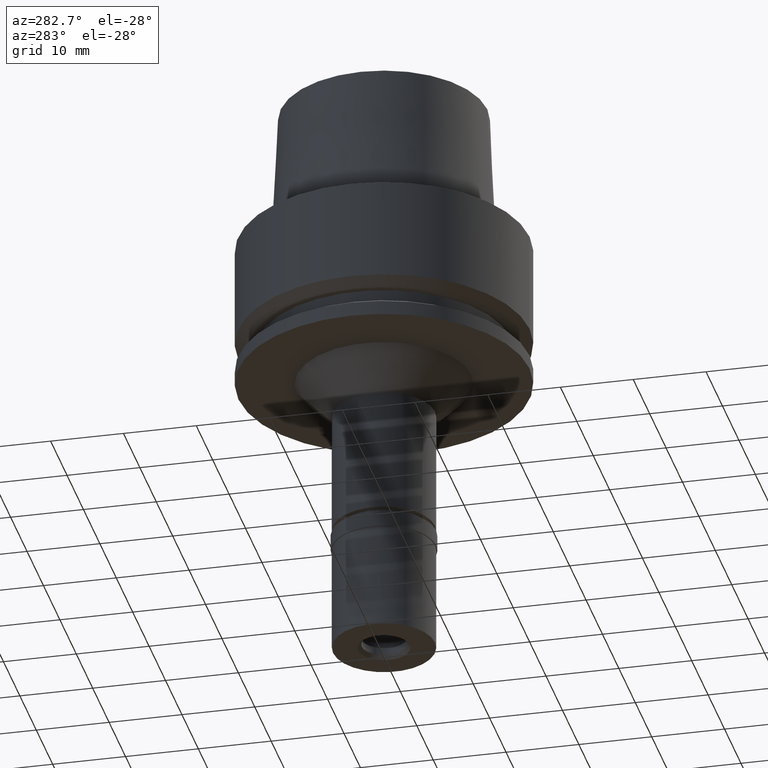
[diagram: clean part render]
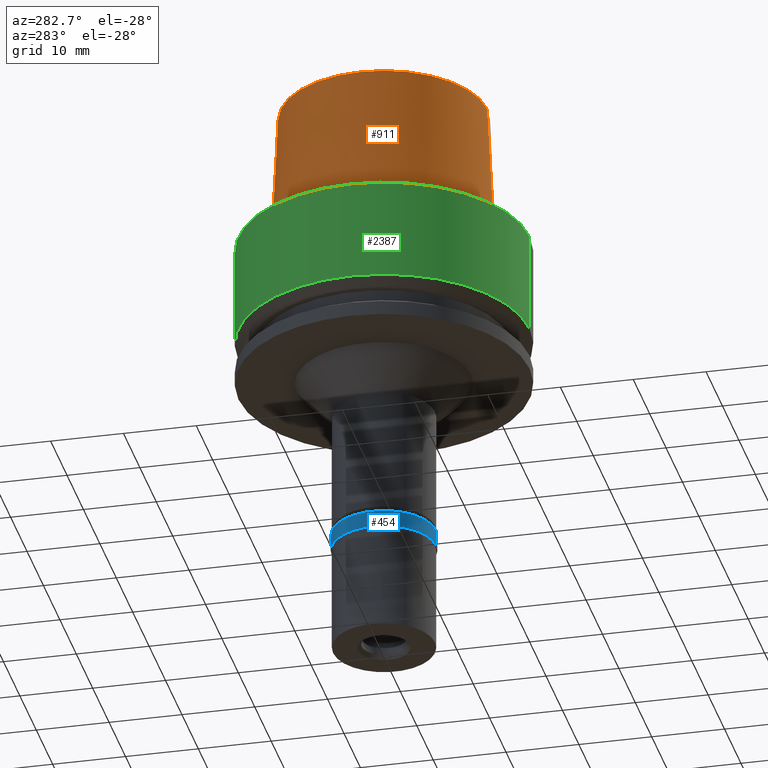
[diagram: same view with three faces highlighted in distinct colors, each labeled with its STEP entity id]
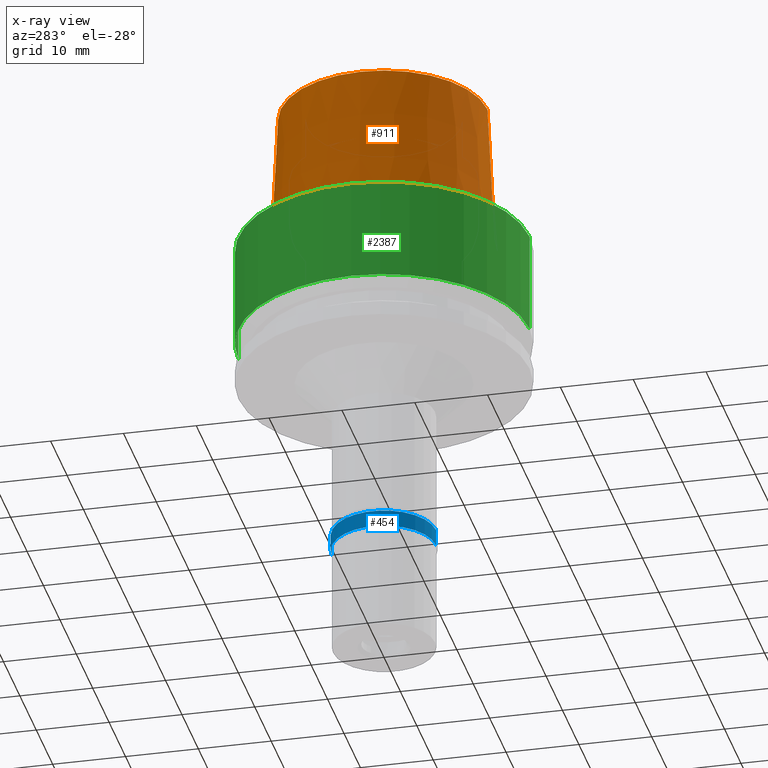
[diagram: x-ray of the same camera — body ghosted, the three highlighted faces saturated]
A machine part, auxiliary view with three faces highlighted in distinct colors.
The next image is the same camera in x-ray (body ghosted, the three faces saturated) — at least one of them is partly hidden behind the body in this view.
Their STEP definitions:

[orange] entity #911 — the highlighted conical surface has half-angle 2.862 deg.
#64 = EDGE_CURVE ( 'NONE', #2385, #2544, #947, .T. ) ;
#105 = DIRECTION ( 'NONE',  ( 0.0000000000000000000, 0.04993752584496928548, -0.9987523434327867378 ) ) ;
#107 = ORIENTED_EDGE ( 'NONE', *, *, #1122, .T. ) ;
#134 = CARTESIAN_POINT ( 'NONE',  ( 0.0000000000000000000, 15.19999963424000100, 3.801403636316999971E-13 ) ) ;
#331 = ORIENTED_EDGE ( 'NONE', *, *, #64, .T. ) ;
#467 = CARTESIAN_POINT ( 'NONE',  ( 0.0000000000000000000, 14.20000146305999955, 20.00000000000000000 ) ) ;
#520 = EDGE_CURVE ( 'NONE', #1661, #1848, #1071, .T. ) ;
#579 = DIRECTION ( 'NONE',  ( 0.0000000000000000000, 1.000000000000000000, 0.0000000000000000000 ) ) ;
#604 = CARTESIAN_POINT ( 'NONE',  ( 0.0000000000000000000, -14.20000146305999955, 20.00000000000000000 ) ) ;
#680 = AXIS2_PLACEMENT_3D ( 'NONE', #2234, #1987, #579 ) ;
#725 = CARTESIAN_POINT ( 'NONE',  ( 0.0000000000000000000, 0.0000000000000000000, 20.00000000000000000 ) ) ;
#882 = AXIS2_PLACEMENT_3D ( 'NONE', #1846, #1063, #1435 ) ;
#911 = ADVANCED_FACE ( 'NONE', ( #1033 ), #1011, .T. ) ;
#931 = DIRECTION ( 'NONE',  ( 0.0000000000000000000, -1.000000000000000000, 0.0000000000000000000 ) ) ;
#947 = LINE ( 'NONE', #962, #2013 ) ;
#962 = CARTESIAN_POINT ( 'NONE',  ( 0.0000000000000000000, 14.20000146305999955, 20.00000000000000000 ) ) ;
#1011 = CONICAL_SURFACE ( 'NONE', #882, 14.70000054865000116, 0.04995830450907576964 ) ;
#1033 = FACE_OUTER_BOUND ( 'NONE', #2287, .T. ) ;
#1063 = DIRECTION ( 'NONE',  ( 0.0000000000000000000, 0.0000000000000000000, -1.000000000000000000 ) ) ;
#1071 = LINE ( 'NONE', #604, #1095 ) ;
#1095 = VECTOR ( 'NONE', #2269, 999.9999999999998863 ) ;
#1122 = EDGE_CURVE ( 'NONE', #1661, #2385, #1583, .T. ) ;
#1184 = CARTESIAN_POINT ( 'NONE',  ( 0.0000000000000000000, -15.19999963424000100, 3.801403636316999971E-13 ) ) ;
#1297 = ORIENTED_EDGE ( 'NONE', *, *, #520, .F. ) ;
#1329 = CARTESIAN_POINT ( 'NONE',  ( 0.0000000000000000000, -14.20000146305999955, 20.00000000000000000 ) ) ;
#1435 = DIRECTION ( 'NONE',  ( 0.0000000000000000000, -1.000000000000000000, 0.0000000000000000000 ) ) ;
#1583 = CIRCLE ( 'NONE', #2366, 14.20000146305999955 ) ;
#1661 = VERTEX_POINT ( 'NONE', #1329 ) ;
#1846 = CARTESIAN_POINT ( 'NONE',  ( 0.0000000000000000000, 0.0000000000000000000, 10.00000000000000000 ) ) ;
#1848 = VERTEX_POINT ( 'NONE', #1184 ) ;
#1987 = DIRECTION ( 'NONE',  ( 0.0000000000000000000, 0.0000000000000000000, 1.000000000000000000 ) ) ;
#2013 = VECTOR ( 'NONE', #105, 999.9999999999998863 ) ;
#2143 = ORIENTED_EDGE ( 'NONE', *, *, #2598, .T. ) ;
#2171 = DIRECTION ( 'NONE',  ( 0.0000000000000000000, 0.0000000000000000000, -1.000000000000000000 ) ) ;
#2234 = CARTESIAN_POINT ( 'NONE',  ( 0.0000000000000000000, 0.0000000000000000000, 6.821210263297000155E-13 ) ) ;
#2269 = DIRECTION ( 'NONE',  ( 0.0000000000000000000, -0.04993752584496928548, -0.9987523434327867378 ) ) ;
#2287 = EDGE_LOOP ( 'NONE', ( #2143, #1297, #107, #331 ) ) ;
#2366 = AXIS2_PLACEMENT_3D ( 'NONE', #725, #2171, #931 ) ;
#2385 = VERTEX_POINT ( 'NONE', #467 ) ;
#2544 = VERTEX_POINT ( 'NONE', #134 ) ;
#2563 = CIRCLE ( 'NONE', #680, 15.19999963424000100 ) ;
#2598 = EDGE_CURVE ( 'NONE', #2544, #1848, #2563, .T. ) ;

[blue] entity #454 — the highlighted cylindrical surface (partial cylindrical patch) has radius 7.15 mm, axis along (0, 0, 1).
#102 = VECTOR ( 'NONE', #1760, 1000.000000000000000 ) ;
#144 = DIRECTION ( 'NONE',  ( 0.0000000000000000000, -1.000000000000000000, 0.0000000000000000000 ) ) ;
#361 = AXIS2_PLACEMENT_3D ( 'NONE', #1369, #1597, #144 ) ;
#454 = ADVANCED_FACE ( 'NONE', ( #1707 ), #1097, .T. ) ;
#486 = AXIS2_PLACEMENT_3D ( 'NONE', #1850, #1660, #2495 ) ;
#609 = EDGE_CURVE ( 'NONE', #2581, #1036, #2180, .T. ) ;
#615 = DIRECTION ( 'NONE',  ( 0.0000000000000000000, 0.0000000000000000000, -1.000000000000000000 ) ) ;
#624 = EDGE_CURVE ( 'NONE', #1969, #2581, #2014, .T. ) ;
#667 = ORIENTED_EDGE ( 'NONE', *, *, #2126, .T. ) ;
#770 = CARTESIAN_POINT ( 'NONE',  ( 0.0000000000000000000, -7.150000000000000355, 1.776356839399999922E-14 ) ) ;
#894 = ORIENTED_EDGE ( 'NONE', *, *, #624, .T. ) ;
#1023 = CARTESIAN_POINT ( 'NONE',  ( 0.0000000000000000000, 0.0000000000000000000, -17.85000000000000142 ) ) ;
#1036 = VERTEX_POINT ( 'NONE', #1736 ) ;
#1096 = CIRCLE ( 'NONE', #486, 7.150000000000000355 ) ;
#1097 = CYLINDRICAL_SURFACE ( 'NONE', #1296, 7.150000000000000355 ) ;
#1262 = VERTEX_POINT ( 'NONE', #2386 ) ;
#1296 = AXIS2_PLACEMENT_3D ( 'NONE', #1023, #1495, #2329 ) ;
#1369 = CARTESIAN_POINT ( 'NONE',  ( 0.0000000000000000000, 0.0000000000000000000, 1.776356839399999922E-14 ) ) ;
#1444 = EDGE_CURVE ( 'NONE', #1969, #1262, #2080, .T. ) ;
#1495 = DIRECTION ( 'NONE',  ( 0.0000000000000000000, 0.0000000000000000000, 1.000000000000000000 ) ) ;
#1513 = EDGE_LOOP ( 'NONE', ( #667, #2236, #894, #2306 ) ) ;
#1579 = CARTESIAN_POINT ( 'NONE',  ( 0.0000000000000000000, 7.150000000000000355, 0.0000000000000000000 ) ) ;
#1597 = DIRECTION ( 'NONE',  ( 0.0000000000000000000, 0.0000000000000000000, -1.000000000000000000 ) ) ;
#1657 = VECTOR ( 'NONE', #615, 1000.000000000000000 ) ;
#1660 = DIRECTION ( 'NONE',  ( 0.0000000000000000000, 0.0000000000000000000, 1.000000000000000000 ) ) ;
#1707 = FACE_OUTER_BOUND ( 'NONE', #1513, .T. ) ;
#1736 = CARTESIAN_POINT ( 'NONE',  ( 0.0000000000000000000, 7.150000000000000355, -2.299999999999999822 ) ) ;
#1760 = DIRECTION ( 'NONE',  ( 0.0000000000000000000, 0.0000000000000000000, -1.000000000000000000 ) ) ;
#1850 = CARTESIAN_POINT ( 'NONE',  ( 0.0000000000000000000, 0.0000000000000000000, -2.299999999999999822 ) ) ;
#1969 = VERTEX_POINT ( 'NONE', #770 ) ;
#2014 = CIRCLE ( 'NONE', #361, 7.150000000000000355 ) ;
#2059 = CARTESIAN_POINT ( 'NONE',  ( 0.0000000000000000000, -7.150000000000000355, 0.0000000000000000000 ) ) ;
#2080 = LINE ( 'NONE', #2059, #1657 ) ;
#2126 = EDGE_CURVE ( 'NONE', #1036, #1262, #1096, .T. ) ;
#2180 = LINE ( 'NONE', #1579, #102 ) ;
#2236 = ORIENTED_EDGE ( 'NONE', *, *, #1444, .F. ) ;
#2306 = ORIENTED_EDGE ( 'NONE', *, *, #609, .T. ) ;
#2329 = DIRECTION ( 'NONE',  ( 0.0000000000000000000, 1.000000000000000000, 0.0000000000000000000 ) ) ;
#2386 = CARTESIAN_POINT ( 'NONE',  ( 0.0000000000000000000, -7.150000000000000355, -2.299999999999999822 ) ) ;
#2454 = CARTESIAN_POINT ( 'NONE',  ( 0.0000000000000000000, 7.150000000000000355, 1.776356839399999922E-14 ) ) ;
#2495 = DIRECTION ( 'NONE',  ( 0.0000000000000000000, 1.000000000000000000, 0.0000000000000000000 ) ) ;
#2581 = VERTEX_POINT ( 'NONE', #2454 ) ;

[green] entity #2387 — the highlighted cylindrical surface (partial cylindrical patch) has radius 20 mm, axis along (0, 0, 1).
#22 = AXIS2_PLACEMENT_3D ( 'NONE', #1137, #1780, #2625 ) ;
#43 = DIRECTION ( 'NONE',  ( 0.0000000000000000000, 0.0000000000000000000, 1.000000000000000000 ) ) ;
#67 = CARTESIAN_POINT ( 'NONE',  ( 0.0000000000000000000, 0.0000000000000000000, -59.79999999999999716 ) ) ;
#300 = LINE ( 'NONE', #708, #2226 ) ;
#550 = LINE ( 'NONE', #977, #553 ) ;
#553 = VECTOR ( 'NONE', #2419, 1000.000000000000000 ) ;
#686 = EDGE_CURVE ( 'NONE', #2133, #2273, #800, .T. ) ;
#697 = VERTEX_POINT ( 'NONE', #2410 ) ;
#698 = CYLINDRICAL_SURFACE ( 'NONE', #1138, 20.00000000000000000 ) ;
#708 = CARTESIAN_POINT ( 'NONE',  ( 0.0000000000000000000, 20.00000000000000000, 2.842170943039999687E-14 ) ) ;
#800 = CIRCLE ( 'NONE', #22, 20.00000000000000000 ) ;
#833 = CIRCLE ( 'NONE', #2357, 20.00000000000000000 ) ;
#864 = DIRECTION ( 'NONE',  ( 0.0000000000000000000, 1.000000000000000000, 0.0000000000000000000 ) ) ;
#977 = CARTESIAN_POINT ( 'NONE',  ( 0.0000000000000000000, -20.00000000000000000, 2.842170943039999687E-14 ) ) ;
#985 = ORIENTED_EDGE ( 'NONE', *, *, #686, .T. ) ;
#1137 = CARTESIAN_POINT ( 'NONE',  ( 0.0000000000000000000, 0.0000000000000000000, -13.97927405538000123 ) ) ;
#1138 = AXIS2_PLACEMENT_3D ( 'NONE', #67, #43, #864 ) ;
#1321 = ORIENTED_EDGE ( 'NONE', *, *, #1540, .T. ) ;
#1500 = ORIENTED_EDGE ( 'NONE', *, *, #2696, .F. ) ;
#1508 = DIRECTION ( 'NONE',  ( 0.0000000000000000000, -1.000000000000000000, 0.0000000000000000000 ) ) ;
#1521 = EDGE_CURVE ( 'NONE', #697, #1533, #833, .T. ) ;
#1524 = DIRECTION ( 'NONE',  ( 0.0000000000000000000, 2.439758400998999725E-14, -1.000000000000000000 ) ) ;
#1533 = VERTEX_POINT ( 'NONE', #2572 ) ;
#1540 = EDGE_CURVE ( 'NONE', #1533, #2133, #300, .T. ) ;
#1676 = CARTESIAN_POINT ( 'NONE',  ( 0.0000000000000000000, -20.00000000000000000, -13.97927405538000123 ) ) ;
#1720 = CARTESIAN_POINT ( 'NONE',  ( 0.0000000000000000000, 0.0000000000000000000, 4.973799150320999175E-14 ) ) ;
#1780 = DIRECTION ( 'NONE',  ( 0.0000000000000000000, 0.0000000000000000000, 1.000000000000000000 ) ) ;
#2120 = ORIENTED_EDGE ( 'NONE', *, *, #1521, .T. ) ;
#2133 = VERTEX_POINT ( 'NONE', #2274 ) ;
#2172 = FACE_OUTER_BOUND ( 'NONE', #2399, .T. ) ;
#2226 = VECTOR ( 'NONE', #1524, 1000.000000000000000 ) ;
#2273 = VERTEX_POINT ( 'NONE', #1676 ) ;
#2274 = CARTESIAN_POINT ( 'NONE',  ( 0.0000000000000000000, 20.00000000000000000, -13.97927405538000123 ) ) ;
#2357 = AXIS2_PLACEMENT_3D ( 'NONE', #1720, #2556, #1508 ) ;
#2387 = ADVANCED_FACE ( 'NONE', ( #2172 ), #698, .T. ) ;
#2399 = EDGE_LOOP ( 'NONE', ( #985, #1500, #2120, #1321 ) ) ;
#2410 = CARTESIAN_POINT ( 'NONE',  ( 0.0000000000000000000, -20.00000000000000000, 4.973799150320999175E-14 ) ) ;
#2419 = DIRECTION ( 'NONE',  ( 0.0000000000000000000, -2.439758400998999725E-14, -1.000000000000000000 ) ) ;
#2556 = DIRECTION ( 'NONE',  ( 0.0000000000000000000, 0.0000000000000000000, -1.000000000000000000 ) ) ;
#2572 = CARTESIAN_POINT ( 'NONE',  ( 0.0000000000000000000, 20.00000000000000000, 4.973799150320999175E-14 ) ) ;
#2625 = DIRECTION ( 'NONE',  ( 0.0000000000000000000, 1.000000000000000000, 0.0000000000000000000 ) ) ;
#2696 = EDGE_CURVE ( 'NONE', #697, #2273, #550, .T. ) ;